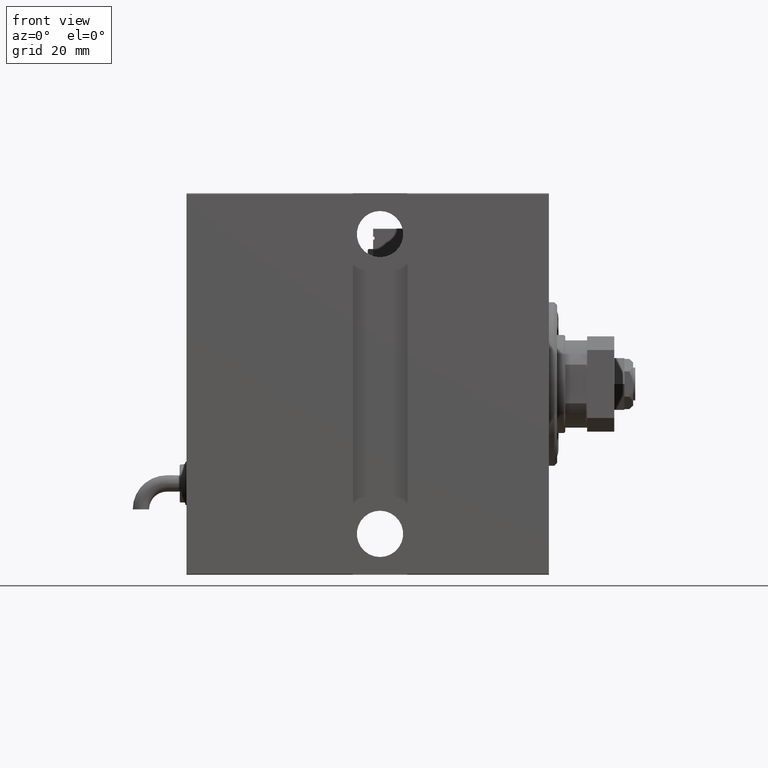
[diagram: clean part render]
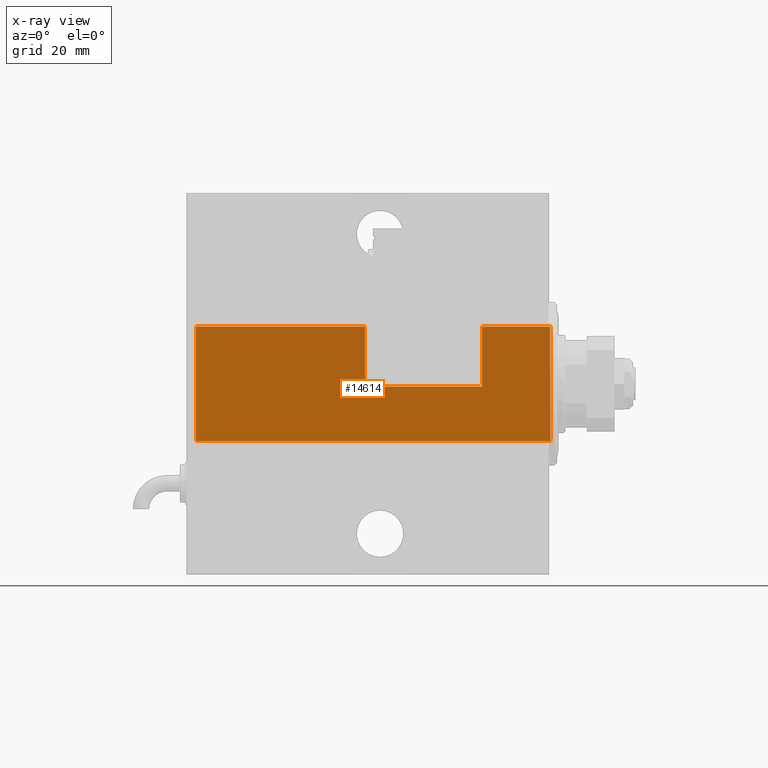
[diagram: x-ray — body ghosted, one internal face saturated and labeled with its STEP entity id]
A machine part, front view, then the same camera in x-ray: the body is ghosted and one INTERNAL B-rep face — a face not visible from any outside direction — is saturated and labeled: STEP entity #14614.
In plain terms, the highlighted planar face has unit normal (-0, 1, 0).
Its self-contained STEP definition (entity closure, byte-faithful):
#557 = EDGE_CURVE ( 'NONE', #41824, #44705, #49755, .T. ) ;
#578 = CARTESIAN_POINT ( 'NONE',  ( -26.00000000000000000, 22.79999999999999716, 3.000000000000002665 ) ) ;
#5694 = ORIENTED_EDGE ( 'NONE', *, *, #39562, .T. ) ;
#6843 = VERTEX_POINT ( 'NONE', #54373 ) ;
#6937 = CARTESIAN_POINT ( 'NONE',  ( 1.000000000000014655, 22.79999999999999716, 65.00000000000001421 ) ) ;
#9164 = DIRECTION ( 'NONE',  ( -1.000000000000000000, 0.000000000000000000, 0.000000000000000000 ) ) ;
#9409 = VECTOR ( 'NONE', #9164, 1000.000000000000000 ) ;
#10039 = DIRECTION ( 'NONE',  ( 1.000000000000000000, -0.000000000000000000, 0.000000000000000000 ) ) ;
#10075 = CARTESIAN_POINT ( 'NONE',  ( 20.99999999999999645, 22.79999999999999716, 133.0000000000000000 ) ) ;
#10496 = CARTESIAN_POINT ( 'NONE',  ( -26.00000000000000000, 22.79999999999999716, 133.0000000000000000 ) ) ;
#11120 = VECTOR ( 'NONE', #45631, 1000.000000000000000 ) ;
#12173 = VECTOR ( 'NONE', #49805, 1000.000000000000000 ) ;
#12550 = CARTESIAN_POINT ( 'NONE',  ( -20.99999999999999645, 22.79999999999999716, 0.000000000000000000 ) ) ;
#13383 = CARTESIAN_POINT ( 'NONE',  ( -26.00000000000000000, 22.79999999999999716, 133.0000000000000000 ) ) ;
#14429 = CARTESIAN_POINT ( 'NONE',  ( -26.00000000000000000, 22.79999999999999716, 65.00000000000001421 ) ) ;
#14509 = LINE ( 'NONE', #10075, #11120 ) ;
#14614 = ADVANCED_FACE ( 'NONE', ( #28257 ), #55538, .F. ) ;
#15060 = EDGE_CURVE ( 'NONE', #50131, #44705, #53139, .T. ) ;
#15934 = VERTEX_POINT ( 'NONE', #22026 ) ;
#18800 = ORIENTED_EDGE ( 'NONE', *, *, #31493, .T. ) ;
#18928 = CARTESIAN_POINT ( 'NONE',  ( -26.00000000000000000, 22.79999999999999716, 108.0000000000000142 ) ) ;
#19918 = ORIENTED_EDGE ( 'NONE', *, *, #20329, .T. ) ;
#20329 = EDGE_CURVE ( 'NONE', #41824, #15934, #14509, .T. ) ;
#20507 = EDGE_LOOP ( 'NONE', ( #52889, #18800, #58575, #39295, #19918, #21143, #23043, #5694 ) ) ;
#21143 = ORIENTED_EDGE ( 'NONE', *, *, #22984, .F. ) ;
#21314 = VECTOR ( 'NONE', #10039, 1000.000000000000000 ) ;
#22026 = CARTESIAN_POINT ( 'NONE',  ( 20.99999999999998579, 22.79999999999999716, 133.0000000000000000 ) ) ;
#22984 = EDGE_CURVE ( 'NONE', #28530, #15934, #49513, .T. ) ;
#23043 = ORIENTED_EDGE ( 'NONE', *, *, #43007, .T. ) ;
#23118 = VERTEX_POINT ( 'NONE', #28747 ) ;
#23127 = CARTESIAN_POINT ( 'NONE',  ( -20.99999999999999645, 22.79999999999999716, 65.00000000000001421 ) ) ;
#26175 = CARTESIAN_POINT ( 'NONE',  ( -20.99999999999999645, 22.79999999999999716, 0.000000000000000000 ) ) ;
#26352 = VERTEX_POINT ( 'NONE', #6937 ) ;
#26736 = DIRECTION ( 'NONE',  ( 0.000000000000000000, 0.000000000000000000, -1.000000000000000000 ) ) ;
#28257 = FACE_OUTER_BOUND ( 'NONE', #20507, .T. ) ;
#28530 = VERTEX_POINT ( 'NONE', #53779 ) ;
#28553 = DIRECTION ( 'NONE',  ( 0.000000000000000000, 1.000000000000000000, 0.000000000000000000 ) ) ;
#28747 = CARTESIAN_POINT ( 'NONE',  ( 1.000000000000014655, 22.79999999999999716, 108.0000000000000142 ) ) ;
#29818 = VECTOR ( 'NONE', #26736, 1000.000000000000000 ) ;
#30138 = VECTOR ( 'NONE', #35731, 1000.000000000000000 ) ;
#31493 = EDGE_CURVE ( 'NONE', #26352, #50131, #33376, .T. ) ;
#32503 = DIRECTION ( 'NONE',  ( -1.000000000000000000, 0.000000000000000000, 0.000000000000000000 ) ) ;
#32711 = EDGE_CURVE ( 'NONE', #26352, #23118, #39876, .T. ) ;
#32818 = CARTESIAN_POINT ( 'NONE',  ( 20.99999999999998579, 22.79999999999999716, 3.000000000000002665 ) ) ;
#33376 = LINE ( 'NONE', #14429, #34830 ) ;
#34830 = VECTOR ( 'NONE', #32503, 1000.000000000000000 ) ;
#35731 = DIRECTION ( 'NONE',  ( 0.000000000000000000, -0.000000000000000000, 1.000000000000000000 ) ) ;
#39295 = ORIENTED_EDGE ( 'NONE', *, *, #557, .F. ) ;
#39562 = EDGE_CURVE ( 'NONE', #6843, #23118, #46481, .T. ) ;
#39876 = LINE ( 'NONE', #48765, #30138 ) ;
#40216 = AXIS2_PLACEMENT_3D ( 'NONE', #10496, #28553, #55240 ) ;
#41824 = VERTEX_POINT ( 'NONE', #32818 ) ;
#43007 = EDGE_CURVE ( 'NONE', #28530, #6843, #48714, .T. ) ;
#44705 = VERTEX_POINT ( 'NONE', #55955 ) ;
#45631 = DIRECTION ( 'NONE',  ( -0.000000000000000000, -0.000000000000000000, 1.000000000000000000 ) ) ;
#46481 = LINE ( 'NONE', #18928, #21314 ) ;
#48426 = DIRECTION ( 'NONE',  ( 0.000000000000000000, 0.000000000000000000, -1.000000000000000000 ) ) ;
#48714 = LINE ( 'NONE', #26175, #48717 ) ;
#48717 = VECTOR ( 'NONE', #48426, 1000.000000000000000 ) ;
#48765 = CARTESIAN_POINT ( 'NONE',  ( 1.000000000000014655, 22.79999999999999716, 133.0000000000000000 ) ) ;
#49513 = LINE ( 'NONE', #13383, #12173 ) ;
#49755 = LINE ( 'NONE', #578, #9409 ) ;
#49805 = DIRECTION ( 'NONE',  ( 1.000000000000000000, 0.000000000000000000, 0.000000000000000000 ) ) ;
#50131 = VERTEX_POINT ( 'NONE', #23127 ) ;
#52889 = ORIENTED_EDGE ( 'NONE', *, *, #32711, .F. ) ;
#53139 = LINE ( 'NONE', #12550, #29818 ) ;
#53779 = CARTESIAN_POINT ( 'NONE',  ( -20.99999999999999645, 22.79999999999999716, 133.0000000000000000 ) ) ;
#54373 = CARTESIAN_POINT ( 'NONE',  ( -20.99999999999999645, 22.79999999999999716, 108.0000000000000142 ) ) ;
#55240 = DIRECTION ( 'NONE',  ( 0.000000000000000000, -0.000000000000000000, 1.000000000000000000 ) ) ;
#55538 = PLANE ( 'NONE',  #40216 ) ;
#55955 = CARTESIAN_POINT ( 'NONE',  ( -20.99999999999999645, 22.79999999999999716, 3.000000000000002665 ) ) ;
#58575 = ORIENTED_EDGE ( 'NONE', *, *, #15060, .T. ) ;